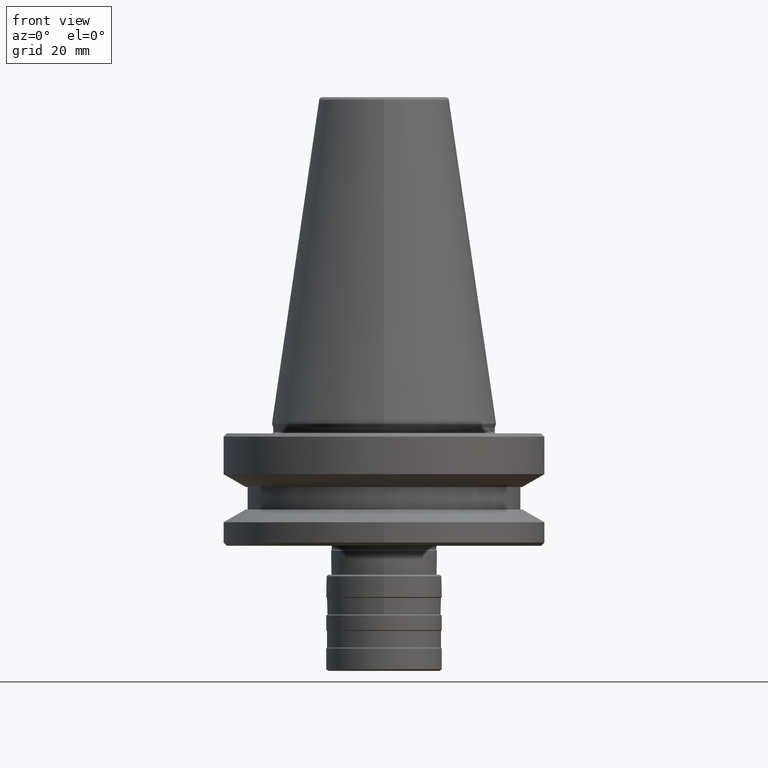
[diagram: clean part render]
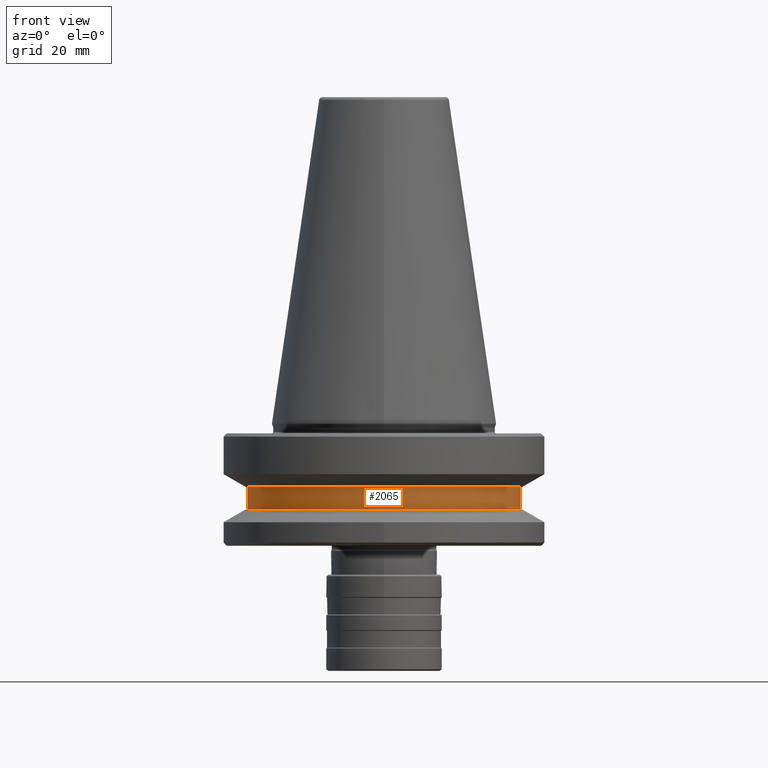
[diagram: same view with one face highlighted and labeled with its STEP entity id]
A machine part, front view. The second image highlights one B-rep face of the part: STEP entity #2065.
In plain terms, the highlighted cylindrical surface (partial cylindrical patch) has radius 42.5 mm, axis along (0, 0, 1).
Its self-contained STEP definition (entity closure, byte-faithful):
#23 = DIRECTION ( 'NONE',  ( 0.0000000000000000000, 0.0000000000000000000, 1.000000000000000000 ) ) ;
#62 = VERTEX_POINT ( 'NONE', #2081 ) ;
#78 = LINE ( 'NONE', #1806, #315 ) ;
#158 = CIRCLE ( 'NONE', #278, 42.50000000000000000 ) ;
#177 = AXIS2_PLACEMENT_3D ( 'NONE', #963, #23, #1177 ) ;
#277 = DIRECTION ( 'NONE',  ( 0.0000000000000000000, 0.0000000000000000000, 1.000000000000000000 ) ) ;
#278 = AXIS2_PLACEMENT_3D ( 'NONE', #1037, #1036, #1025 ) ;
#281 = CARTESIAN_POINT ( 'NONE',  ( 42.50000000000000000, 0.0000000000000000000, -26.70000000000000600 ) ) ;
#315 = VECTOR ( 'NONE', #2096, 1000.000000000000000 ) ;
#320 = VERTEX_POINT ( 'NONE', #1595 ) ;
#395 = ORIENTED_EDGE ( 'NONE', *, *, #2221, .T. ) ;
#463 = CARTESIAN_POINT ( 'NONE',  ( -42.50000000000000000, 5.204748896376250900E-015, -26.70000000074191600 ) ) ;
#781 = VECTOR ( 'NONE', #277, 1000.000000000000000 ) ;
#860 = VERTEX_POINT ( 'NONE', #463 ) ;
#963 = CARTESIAN_POINT ( 'NONE',  ( 0.0000000000000000000, 0.0000000000000000000, -26.70000000074191600 ) ) ;
#1025 = DIRECTION ( 'NONE',  ( 1.000000000000000000, 0.0000000000000000000, 0.0000000000000000000 ) ) ;
#1036 = DIRECTION ( 'NONE',  ( -0.0000000000000000000, -0.0000000000000000000, -1.000000000000000000 ) ) ;
#1037 = CARTESIAN_POINT ( 'NONE',  ( 0.0000000000000000000, 0.0000000000000000000, -19.70000000000001000 ) ) ;
#1045 = EDGE_CURVE ( 'NONE', #320, #2035, #2018, .T. ) ;
#1168 = EDGE_CURVE ( 'NONE', #860, #320, #2242, .T. ) ;
#1177 = DIRECTION ( 'NONE',  ( 1.000000000000000000, 0.0000000000000000000, 0.0000000000000000000 ) ) ;
#1263 = ORIENTED_EDGE ( 'NONE', *, *, #1168, .T. ) ;
#1345 = DIRECTION ( 'NONE',  ( 0.0000000000000000000, 0.0000000000000000000, 1.000000000000000000 ) ) ;
#1369 = CARTESIAN_POINT ( 'NONE',  ( 0.0000000000000000000, 0.0000000000000000000, -26.70000000000000600 ) ) ;
#1374 = CARTESIAN_POINT ( 'NONE',  ( 42.50000000000000000, 0.0000000000000000000, -19.70000000000001000 ) ) ;
#1377 = DIRECTION ( 'NONE',  ( 1.000000000000000000, 0.0000000000000000000, 0.0000000000000000000 ) ) ;
#1450 = ORIENTED_EDGE ( 'NONE', *, *, #1045, .T. ) ;
#1572 = ORIENTED_EDGE ( 'NONE', *, *, #1803, .F. ) ;
#1595 = CARTESIAN_POINT ( 'NONE',  ( 42.50000000000000000, 0.0000000000000000000, -26.70000000074191600 ) ) ;
#1625 = FACE_OUTER_BOUND ( 'NONE', #1757, .T. ) ;
#1757 = EDGE_LOOP ( 'NONE', ( #1572, #1263, #1450, #395 ) ) ;
#1803 = EDGE_CURVE ( 'NONE', #860, #62, #78, .T. ) ;
#1806 = CARTESIAN_POINT ( 'NONE',  ( -42.50000000000000000, 5.204748896376250900E-015, -26.70000000000000600 ) ) ;
#2018 = LINE ( 'NONE', #281, #781 ) ;
#2035 = VERTEX_POINT ( 'NONE', #1374 ) ;
#2065 = ADVANCED_FACE ( 'NONE', ( #1625 ), #2148, .T. ) ;
#2081 = CARTESIAN_POINT ( 'NONE',  ( -42.50000000000000000, 5.204748896376250900E-015, -19.70000000000001000 ) ) ;
#2096 = DIRECTION ( 'NONE',  ( 0.0000000000000000000, 0.0000000000000000000, 1.000000000000000000 ) ) ;
#2137 = AXIS2_PLACEMENT_3D ( 'NONE', #1369, #1345, #1377 ) ;
#2148 = CYLINDRICAL_SURFACE ( 'NONE', #2137, 42.50000000000000000 ) ;
#2221 = EDGE_CURVE ( 'NONE', #2035, #62, #158, .T. ) ;
#2242 = CIRCLE ( 'NONE', #177, 42.50000000000000000 ) ;